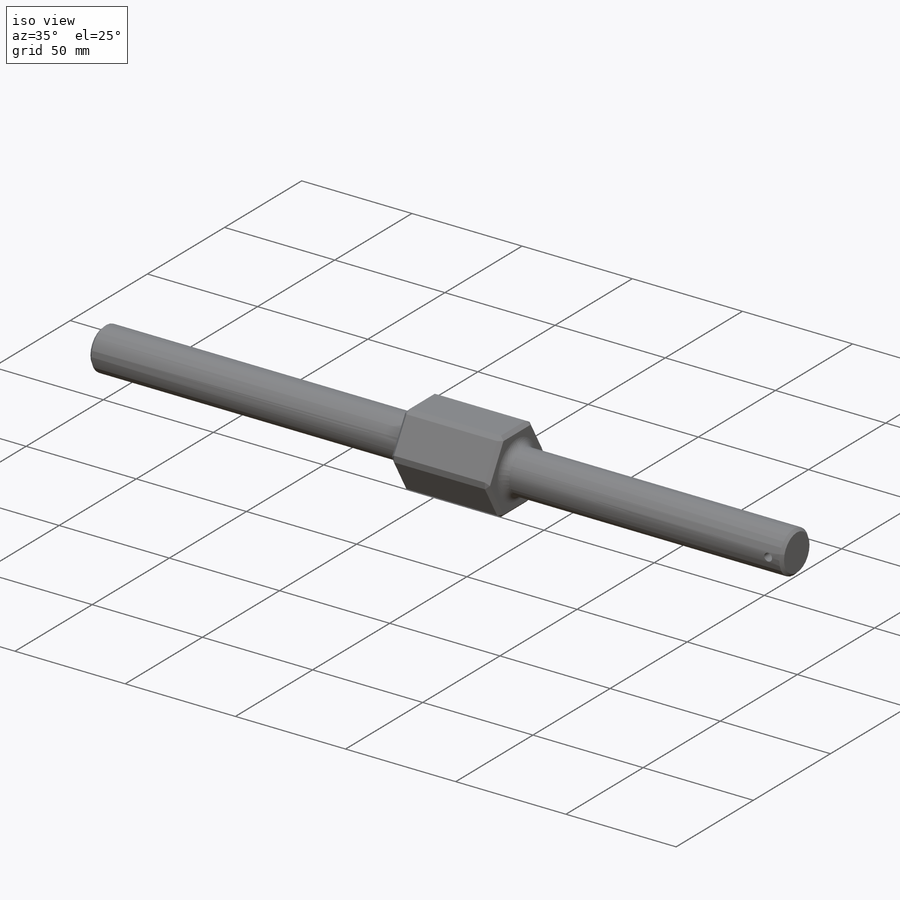
[diagram: iso view]
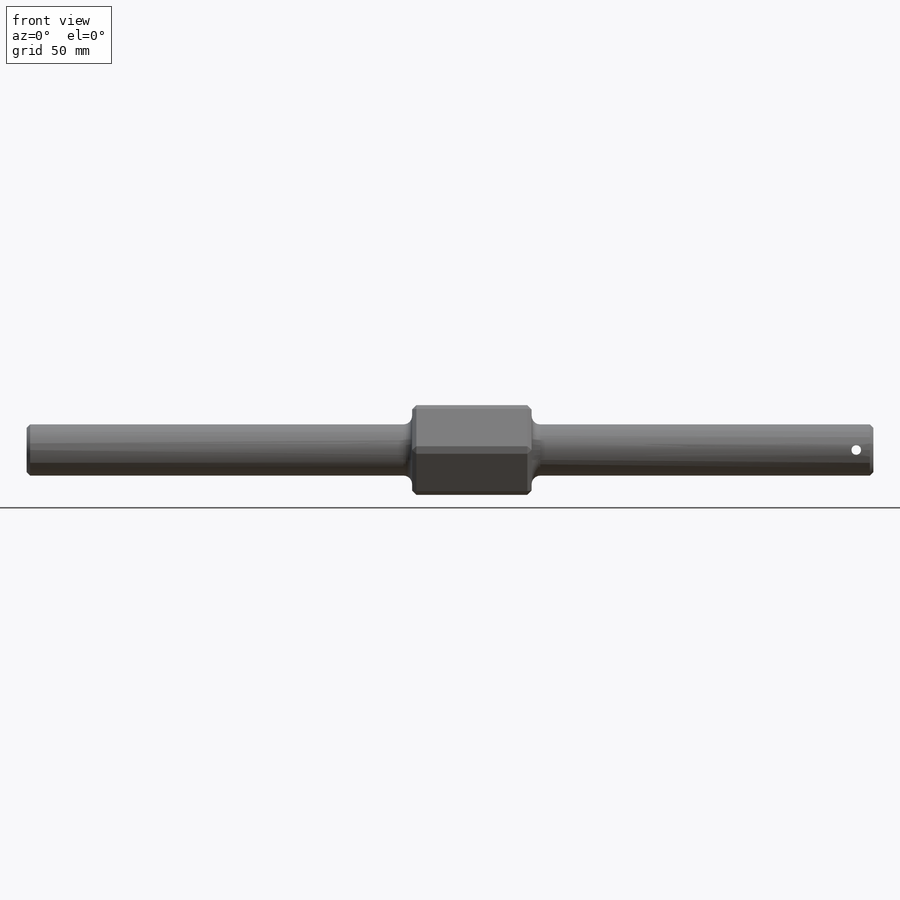
[diagram: front view]
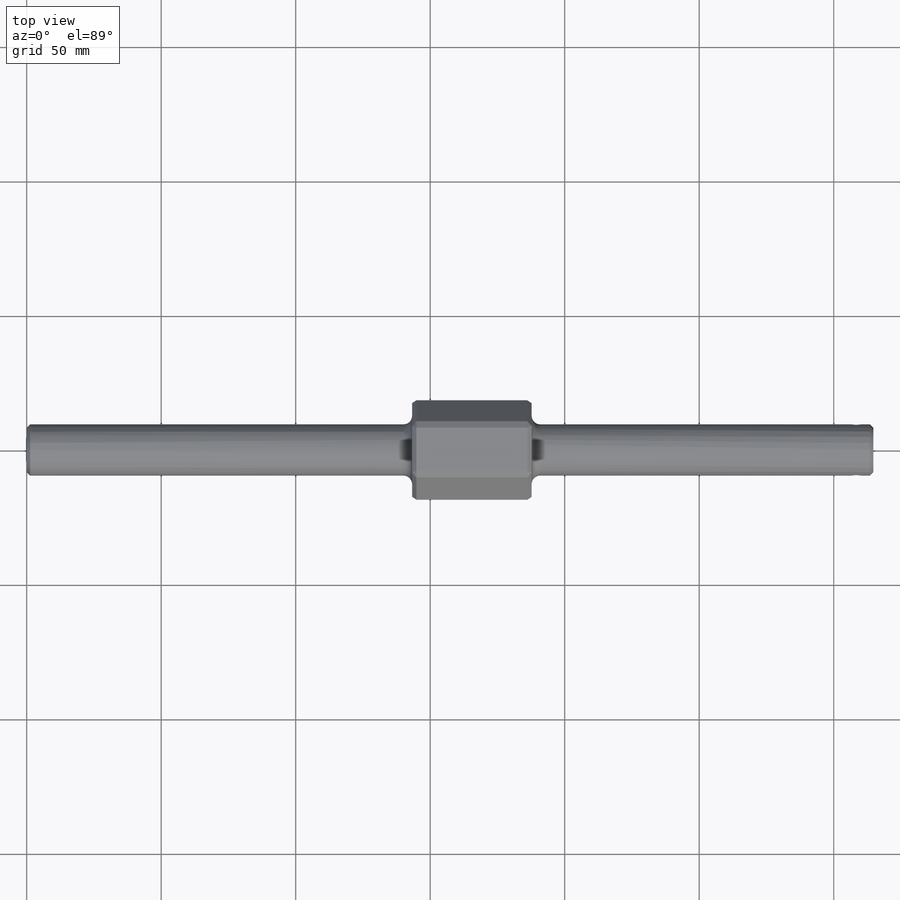
[diagram: top view]
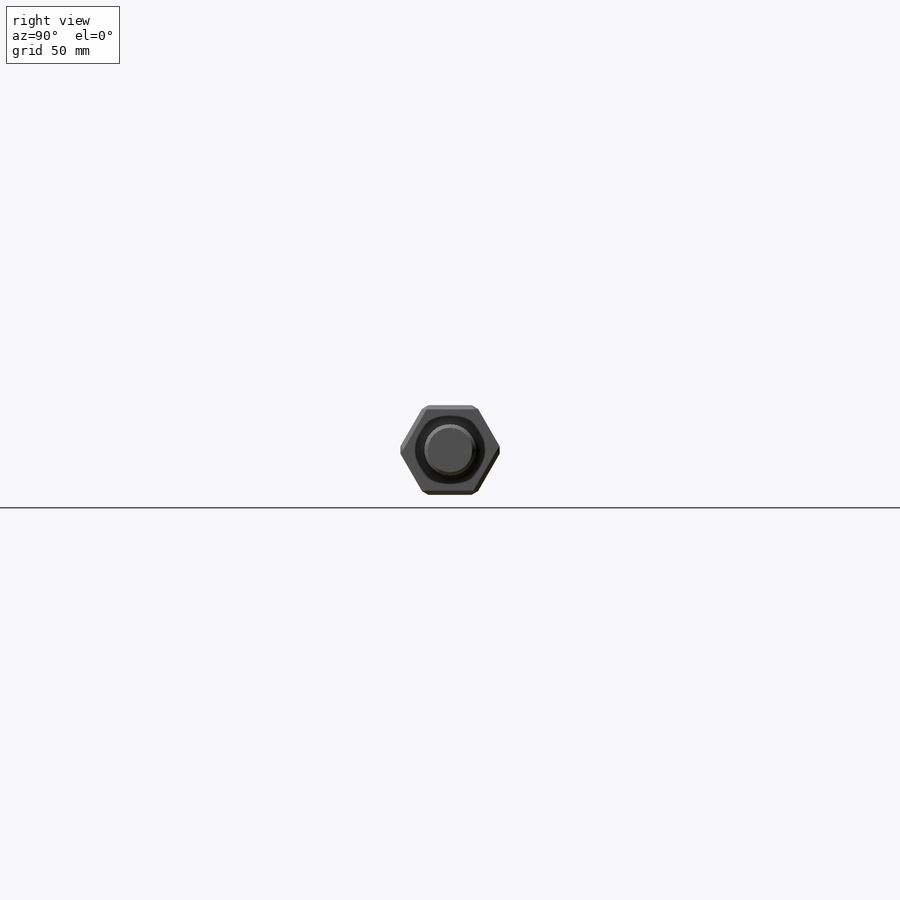
[diagram: right view]
SOLIDWORKS PART (.sldprt)
format: sldprt  version: not decoded by parser v0  size: 263,680 bytes
history: native  units: mm
features: plane x4, sketch x3, thread x2, chamfer x2, material x1, revolve x1, extrude x1, fillet x1, cut_extrude x1 (+11 scaffold rows collapsed)
feature tree (27):
  scaffold x11  (default folders/planes/origin — collapsed)
  material  "420 SSTL"
  plane  "XY"
  plane  "XZ"
  plane  "YZ"
  sketch  "Sketch1"  dims[D1=19.05mm D2=314.706mm]
  revolve  "Revolve1"  [1 undecoded]
  thread  "Cosmetic Thread1"  Diameter=31.75mm  [1 undecoded]
  thread  "Cosmetic Thread2"  Diameter=127mm  [1 undecoded]
  chamfer  "Chamfer1"  Distance=1.27mm Angle=45deg ID=-1
  plane  "Plane1"  Offset=143.256mm
  sketch  "Sketch5"  dims[D1=33.3375mm]
  extrude  "Extrude1"  Depth=44.45mm
  chamfer  "Chamfer3"  Distance=1.5875mm
  fillet  "Fillet2"  Radius=3.175mm
  sketch  "Sketch6"  dims[c1.D1=~7.767908mm c1.D2=3.556mm c2.D1=6.35mm]
  cut_extrude  "Extrude2"  [1 undecoded]
decode coverage: 9 of 11 modeling features carry decoded parameters
note: ~ marks probable driven/reference dimensions
note: 4 parameter values undecoded
note: suppression state not decoded; provenance and decode notes live in map.json
